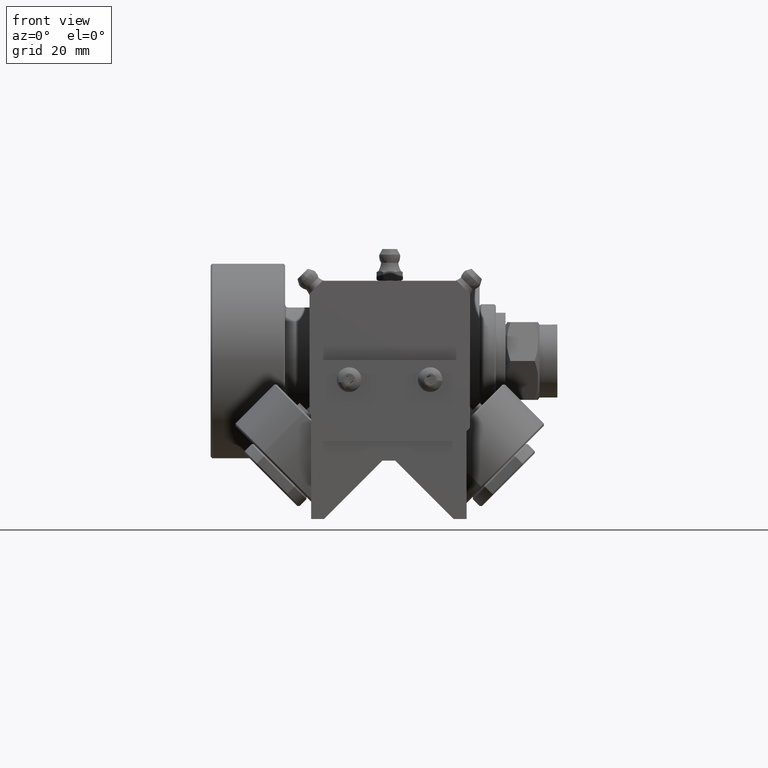
[diagram: clean part render]
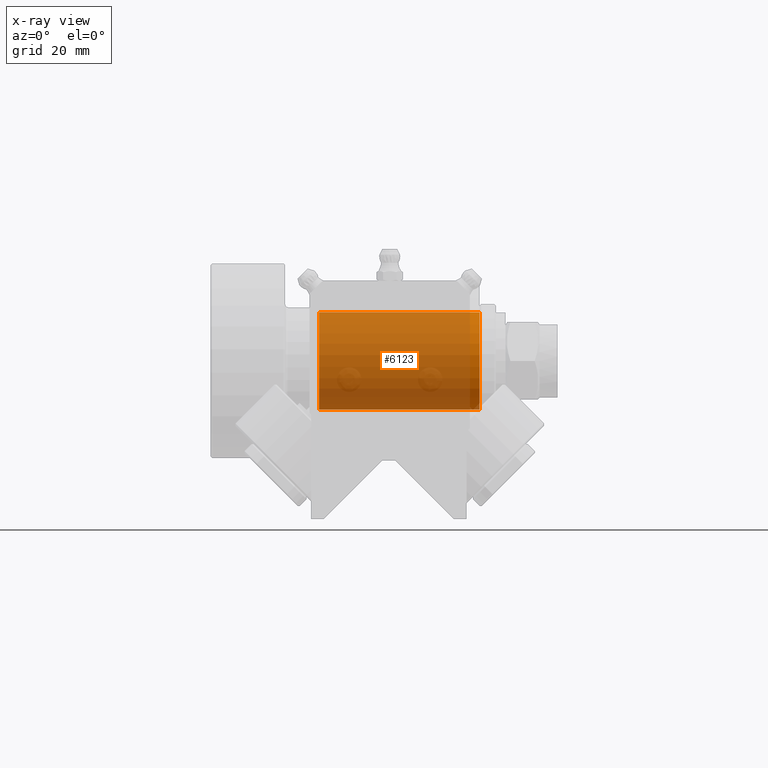
[diagram: x-ray — body ghosted, one internal face saturated and labeled with its STEP entity id]
A machine part, front view, then the same camera in x-ray: the body is ghosted and one INTERNAL B-rep face — a face not visible from any outside direction — is saturated and labeled: STEP entity #6123.
In plain terms, the highlighted cylindrical surface (bore or boss wall) has radius 15 mm, axis along (-1, 0, -0).
Its self-contained STEP definition (entity closure, byte-faithful):
#845=FACE_OUTER_BOUND('',#1238,.T.);
#1238=EDGE_LOOP('',(#5171,#5172,#5173,#5174,#5175));
#1630=CIRCLE('',#7141,15.);
#1631=CIRCLE('',#7144,15.);
#1632=CIRCLE('',#7145,15.);
#2039=LINE('',#12350,#2387);
#2387=VECTOR('',#8536,15.);
#2942=VERTEX_POINT('',#12339);
#2943=VERTEX_POINT('',#12344);
#2944=VERTEX_POINT('',#12346);
#3717=EDGE_CURVE('',#2942,#2942,#1630,.T.);
#3720=EDGE_CURVE('',#2943,#2944,#1631,.T.);
#3721=EDGE_CURVE('',#2944,#2943,#1632,.T.);
#3722=EDGE_CURVE('',#2944,#2942,#2039,.T.);
#5171=ORIENTED_EDGE('',*,*,#3720,.F.);
#5172=ORIENTED_EDGE('',*,*,#3721,.F.);
#5173=ORIENTED_EDGE('',*,*,#3722,.T.);
#5174=ORIENTED_EDGE('',*,*,#3717,.T.);
#5175=ORIENTED_EDGE('',*,*,#3722,.F.);
#5895=CYLINDRICAL_SURFACE('',#7146,15.);
#6123=ADVANCED_FACE('',(#845),#5895,.T.);
#7141=AXIS2_PLACEMENT_3D('',#12340,#8522,#8523);
#7144=AXIS2_PLACEMENT_3D('',#12347,#8530,#8531);
#7145=AXIS2_PLACEMENT_3D('',#12348,#8532,#8533);
#7146=AXIS2_PLACEMENT_3D('',#12349,#8534,#8535);
#8522=DIRECTION('center_axis',(-1.,0.,0.));
#8523=DIRECTION('ref_axis',(0.,0.,1.));
#8530=DIRECTION('center_axis',(-1.,0.,0.));
#8531=DIRECTION('ref_axis',(0.,0.,-1.));
#8532=DIRECTION('center_axis',(-1.,0.,0.));
#8533=DIRECTION('ref_axis',(0.,0.,-1.));
#8534=DIRECTION('center_axis',(-1.,0.,0.));
#8535=DIRECTION('ref_axis',(0.,0.,1.));
#8536=DIRECTION('',(1.,0.,0.));
#12339=CARTESIAN_POINT('',(22.5,-1.83697019872103E-15,-15.));
#12340=CARTESIAN_POINT('Origin',(22.5,0.,0.));
#12344=CARTESIAN_POINT('',(-27.,1.83697019872103E-15,15.));
#12346=CARTESIAN_POINT('',(-27.,-1.83697019872103E-15,-15.));
#12347=CARTESIAN_POINT('Origin',(-27.,0.,0.));
#12348=CARTESIAN_POINT('Origin',(-27.,0.,0.));
#12349=CARTESIAN_POINT('Origin',(-2.5,0.,0.));
#12350=CARTESIAN_POINT('',(-2.5,-1.83697019872103E-15,-15.));